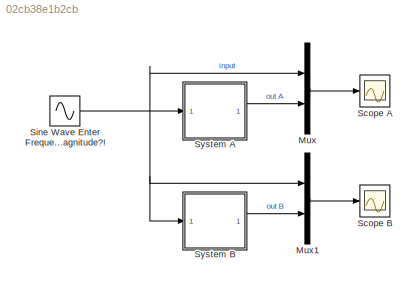
MODEL slx_02cb38e1b2cb
KIND model
CONFIG AbsTol = auto
CONFIG FixedStep = 0.001
CONFIG MaxStep = auto
CONFIG MinStep = auto
CONFIG RelTol = 1e-3
CONFIG SampleTimeConstraint = Unconstrained
CONFIG Solver = ode3
CONFIG SolverMode = Auto
CONFIG SolverName = ode3
CONFIG StartTime = 0.0
CONFIG StopTime = 50
BLOCK [Mux] Mux
  DisplayOption = bar
  Inputs = 2
  Ports = [2, 1]
BLOCK [Mux] Mux1
  DisplayOption = bar
  Inputs = 2
  Ports = [2, 1]
BLOCK [Scope] Scope A
  DataFormat = StructureWithTime
  Floating = off
  LimitDataPoints = off
  NumInputPorts = 1
  Ports = [1]
  SampleTime = 0
  SaveName = scope_A
  SaveToWorkspace = on
  ShowLegends = on
BLOCK [Scope] Scope B
  DataFormat = StructureWithTime
  Floating = off
  LimitDataPoints = off
  NumInputPorts = 1
  Ports = [1]
  SampleTime = 0
  SaveName = scope_B
  SaveToWorkspace = on
  ShowLegends = on
BLOCK [Sin] Sine Wave Enter Frequency in Here What About Magnitude?!
  Amplitude = 2
  Frequency = 1.5
  Ports = [0, 1]
  SampleTime = 0
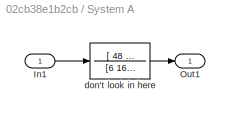
BLOCK [SubSystem] System A
  Ports = [1, 1]
  RequestExecContextInheritance = off
BLOCK [Inport] System A/In1
  IconDisplay = Port number
BLOCK [Outport] System A/Out1
  IconDisplay = Port number
BLOCK [TransferFcn] System A/don't look in here
  Denominator = [6         161        1431        7629       27899       68554       80800]
  Numerator = [  48        1288        9760       32400       40000]
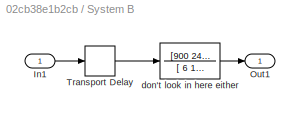
BLOCK [SubSystem] System B
  Ports = [1, 1]
  RequestExecContextInheritance = off
BLOCK [Inport] System B/In1
  IconDisplay = Port number
BLOCK [Outport] System B/Out1
  IconDisplay = Port number
BLOCK [TransportDelay] System B/Transport Delay
  DelayTime = 0.0000000025E8
  Ports = [1, 1]
BLOCK [TransferFcn] System B/don't look in here either
  Denominator = [ 6         167        1490        6329       12988       10100]
  Numerator = [900       24150      183000      607500      750000]
LINE Mux1:1 -> Scope B:1
LINE Mux:1 -> Scope A:1
NET Sine Wave Enter Frequency in Here What About Magnitude?!:1 -> Mux1:1, Mux:1, System A:1, System B:1
LINE System A/In1:1 -> System A/don't look in here:1
LINE System A/don't look in here:1 -> System A/Out1:1
LINE System A:1 -> Mux:2
LINE System B/In1:1 -> System B/Transport Delay:1
LINE System B/Transport Delay:1 -> System B/don't look in here either:1
LINE System B/don't look in here either:1 -> System B/Out1:1
LINE System B:1 -> Mux1:2
note: NET lines group one-source signal fan-out (src -> all destinations, sorted); 1:1 wires keep LINE
